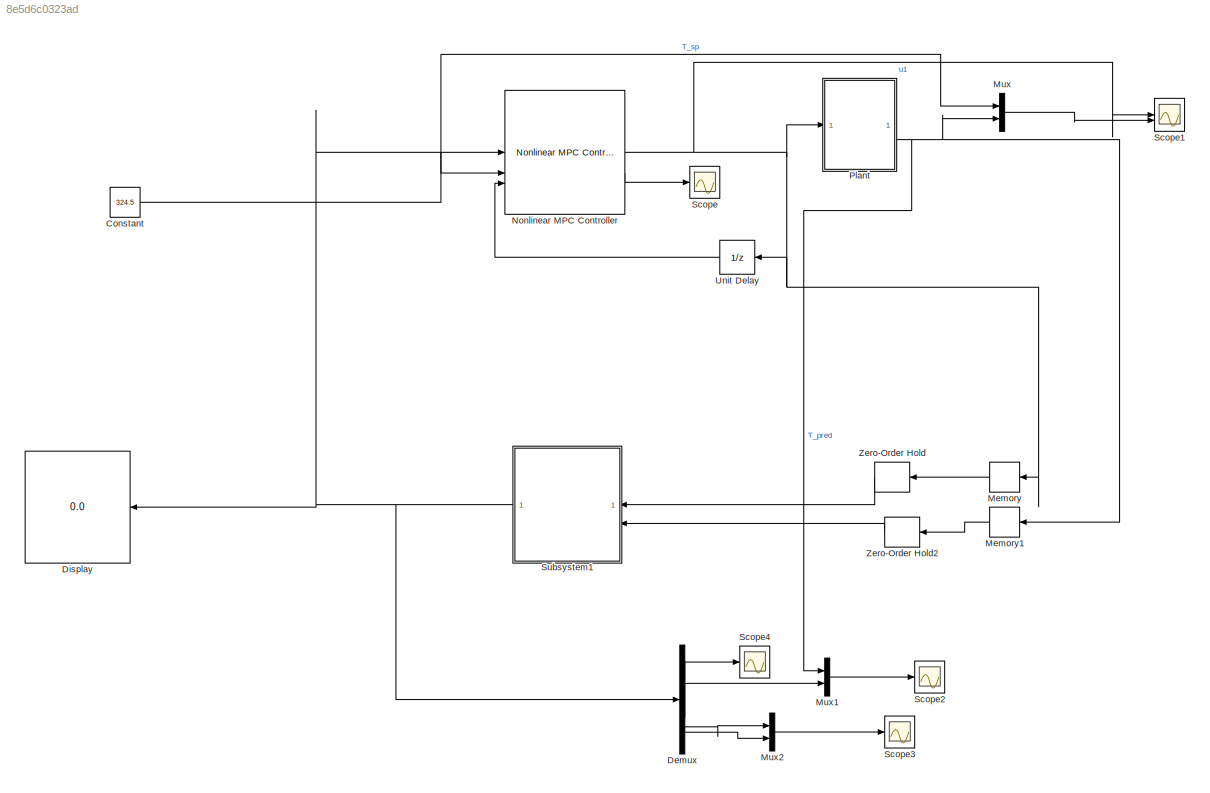
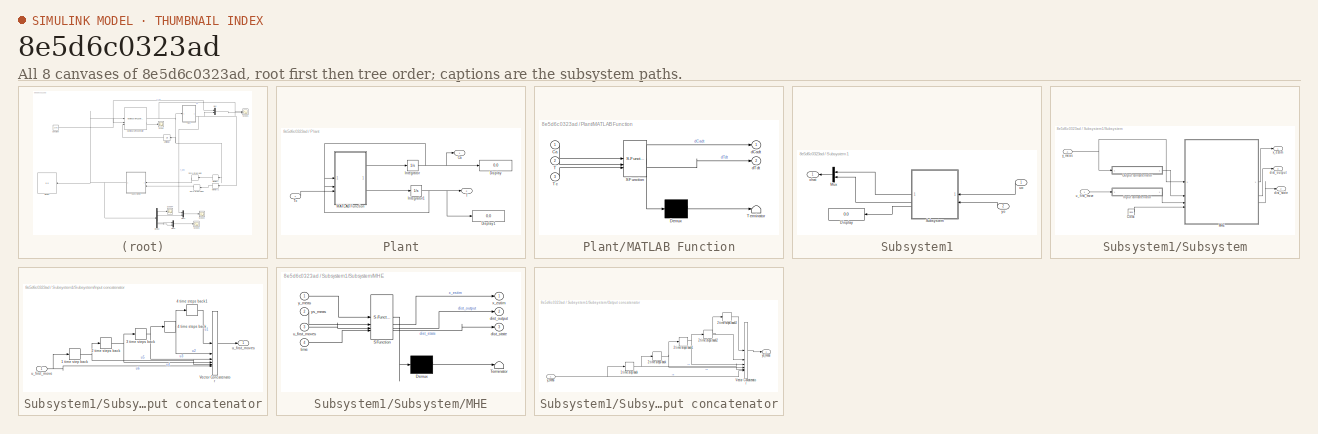
[diagram: thumbnail index - all 8 canvases of the model, root first then tree order]
MODEL slx_8e5d6c0323ad
KIND model
CONFIG AbsTol = auto
CONFIG EnableMultiTasking = off
CONFIG FixedStep = auto
CONFIG MaxStep = auto
CONFIG MinStep = auto
CONFIG RelTol = 1e-3
CONFIG SampleTimeConstraint = Unconstrained
CONFIG SolverName = VariableStepAuto
CONFIG StartTime = 0.0
CONFIG StopTime = 30
BLOCK [Constant] Constant
  Value = 324.5
BLOCK [Demux] Demux
BLOCK [Display] Display
  Decimation = 1
BLOCK [Memory] Memory
  InitialCondition = 300
BLOCK [Memory] Memory1
  InitialCondition = 324.5
BLOCK [Mux] Mux
  DisplayOption = bar
  Inputs = 2
BLOCK [Mux] Mux1
  DisplayOption = bar
  Inputs = 2
BLOCK [Mux] Mux2
  DisplayOption = bar
  Inputs = 2
BLOCK [Reference] Nonlinear MPC Controller  REF=mpclib/Nonlinear MPC Controller  (lib defined in mdl_ae329e0e0455)
  SourceBlock = mpclib/Nonlinear MPC Controller
  SourceType = NonlinearMPC
BLOCK [SubSystem] Plant
BLOCK [Outport] Plant/Ca
BLOCK [Display] Plant/Display
  Decimation = 1
BLOCK [Display] Plant/Display1
  Decimation = 1
BLOCK [Integrator] Plant/Integrator
BLOCK [Integrator] Plant/Integrator1
  InitialCondition = 300
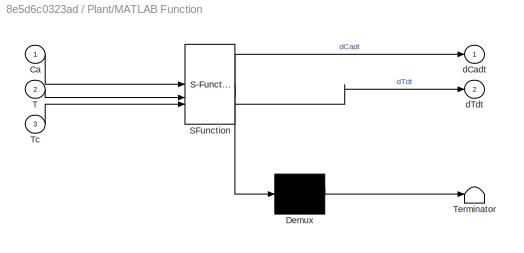
BLOCK [SubSystem] Plant/MATLAB Function
  ErrorFcn = Stateflow.Translate.translate
  PermitHierarchicalResolution = ExplicitOnly
  SFBlockType = MATLAB Function
  TreatAsAtomicUnit = on
BLOCK [Demux] Plant/MATLAB Function/ Demux 
  Outputs = 1
BLOCK [S-Function] Plant/MATLAB Function/ SFunction 
  EnableBusSupport = on
  FunctionName = sf_sfun
  PortCounts = [3 3]
  SFcnIsStateOwnerBlock = off
  SFunctionDeploymentMode = off
  Tag = Stateflow S-Function 2
BLOCK [Terminator] Plant/MATLAB Function/ Terminator 
BLOCK [Inport] Plant/MATLAB Function/Ca
BLOCK [Inport] Plant/MATLAB Function/T
  Port = 2
BLOCK [Inport] Plant/MATLAB Function/Tc
  Port = 3
BLOCK [Outport] Plant/MATLAB Function/dCadt
BLOCK [Outport] Plant/MATLAB Function/dTdt
  Port = 2
BLOCK [Outport] Plant/T
  Port = 2
BLOCK [Inport] Plant/Tc
BLOCK [Scope] Scope
  Floating = off
  NumInputPorts = 1
  ScopeSpecificationString = Simulink.scopes.TimeScopeBlockCfg('CurrentConfiguration', extmgr.ConfigurationSet(extmgr.Configuration('Core','General UI',true),extmgr.Configuration('Core','Source UI',true),extmgr.Configuration('Sources','WiredSimulink',true,'DataLoggingVariableName','ScopeData1'),extmgr.Configuration('Visuals','Time Domain',true,'SerializedDisplays',{struct('MinYLimReal','-2.5','MaxYLimReal','2.5','YLabelReal',...<+1396ch>
BLOCK [Scope] Scope1
  Floating = off
  NumInputPorts = 2
  ScopeSpecificationString = Simulink.scopes.TimeScopeBlockCfg('CurrentConfiguration', extmgr.ConfigurationSet(extmgr.Configuration('Core','General UI',true,'FigureColor',[1 1 1]),extmgr.Configuration('Core','Source UI',true),extmgr.Configuration('Sources','WiredSimulink',true),extmgr.Configuration('Visuals','Time Domain',true,'SerializedDisplays',{struct('MinYLimReal','297.99489','MaxYLimReal','300.22279','YLabelReal','','Mi...<+2320ch>
BLOCK [Scope] Scope2
  Floating = off
  NumInputPorts = 1
  ScopeSpecificationString = Simulink.scopes.TimeScopeBlockCfg('CurrentConfiguration', extmgr.ConfigurationSet(extmgr.Configuration('Core','General UI',true),extmgr.Configuration('Core','Source UI',true),extmgr.Configuration('Sources','WiredSimulink',true,'DataLoggingVariableName','ScopeData1'),extmgr.Configuration('Visuals','Time Domain',true,'SerializedDisplays',{struct('MinYLimReal','296.9375','MaxYLimReal','327.5625','YLa...<+1407ch>
BLOCK [Scope] Scope3
  Floating = off
  NumInputPorts = 1
  ScopeSpecificationString = Simulink.scopes.TimeScopeBlockCfg('CurrentConfiguration', extmgr.ConfigurationSet(extmgr.Configuration('Core','General UI',true),extmgr.Configuration('Core','Source UI',true),extmgr.Configuration('Sources','WiredSimulink',true,'DataLoggingVariableName','ScopeData2'),extmgr.Configuration('Visuals','Time Domain',true,'SerializedDisplays',{struct('MinYLimReal','-0.00125','MaxYLimReal','0.01125','YLab...<+1402ch>
BLOCK [Scope] Scope4
  Floating = off
  NumInputPorts = 1
  ScopeSpecificationString = Simulink.scopes.TimeScopeBlockCfg('CurrentConfiguration', extmgr.ConfigurationSet(extmgr.Configuration('Core','General UI',true),extmgr.Configuration('Core','Source UI',true),extmgr.Configuration('Sources','WiredSimulink',true,'DataLoggingVariableName','ScopeData3'),extmgr.Configuration('Visuals','Time Domain',true,'SerializedDisplays',{struct('MinYLimReal','0.85425','MaxYLimReal','1.08176','YLabe...<+1390ch>
BLOCK [SubSystem] Subsystem1
BLOCK [Display] Subsystem1/Display
  Decimation = 1
BLOCK [Mux] Subsystem1/Mux
  DisplayOption = bar
  Inputs = 2
BLOCK [SubSystem] Subsystem1/Subsystem
BLOCK [Clock] Subsystem1/Subsystem/Clock
  Decimation = 20
BLOCK [SubSystem] Subsystem1/Subsystem/Input concatenator
BLOCK [TransportDelay] Subsystem1/Subsystem/Input concatenator/1 time step back
  DelayTime = Ts
  InitialOutput = 300
BLOCK [TransportDelay] Subsystem1/Subsystem/Input concatenator/2 time steps back
  DelayTime = Ts
  InitialOutput = 300
BLOCK [TransportDelay] Subsystem1/Subsystem/Input concatenator/3 time steps back
  DelayTime = Ts
  InitialOutput = 300
BLOCK [TransportDelay] Subsystem1/Subsystem/Input concatenator/4 time steps back
  DelayTime = Ts
  InitialOutput = 300
BLOCK [TransportDelay] Subsystem1/Subsystem/Input concatenator/4 time steps back1
  DelayTime = Ts
  InitialOutput = 300
BLOCK [Concatenate] Subsystem1/Subsystem/Input concatenator/Vector Concatenator
  Mode = Multidimensional array
  NumInputs = 6
BLOCK [Inport] Subsystem1/Subsystem/Input concatenator/u_first_move
BLOCK [Outport] Subsystem1/Subsystem/Input concatenator/u_first_moves
  PortDimensions = [6,1]
  VectorParamsAs1DForOutWhenUnconnected = off
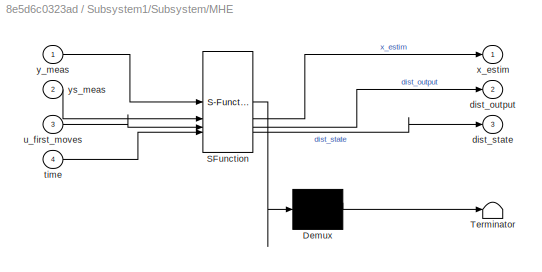
BLOCK [SubSystem] Subsystem1/Subsystem/MHE
  ErrorFcn = Stateflow.Translate.translate
  PermitHierarchicalResolution = ExplicitOnly
  SFBlockType = MATLAB Function
  TreatAsAtomicUnit = on
BLOCK [Demux] Subsystem1/Subsystem/MHE/ Demux 
  Outputs = 1
BLOCK [S-Function] Subsystem1/Subsystem/MHE/ SFunction 
  EnableBusSupport = on
  FunctionName = sf_sfun
  PortCounts = [4 4]
  SFcnIsStateOwnerBlock = off
  SFunctionDeploymentMode = off
  Tag = Stateflow S-Function 1
BLOCK [Terminator] Subsystem1/Subsystem/MHE/ Terminator 
BLOCK [Outport] Subsystem1/Subsystem/MHE/dist_output
  Port = 2
BLOCK [Outport] Subsystem1/Subsystem/MHE/dist_state
  Port = 3
BLOCK [Inport] Subsystem1/Subsystem/MHE/time
  Port = 4
BLOCK [Inport] Subsystem1/Subsystem/MHE/u_first_moves
  Port = 3
BLOCK [Outport] Subsystem1/Subsystem/MHE/x_estim
BLOCK [Inport] Subsystem1/Subsystem/MHE/y_meas
BLOCK [Inport] Subsystem1/Subsystem/MHE/ys_meas
  Port = 2
BLOCK [SubSystem] Subsystem1/Subsystem/Output concatenator
BLOCK [TransportDelay] Subsystem1/Subsystem/Output concatenator/1 time step back
  DelayTime = Ts
  InitialOutput = 324.5
BLOCK [TransportDelay] Subsystem1/Subsystem/Output concatenator/2 time steps back
  DelayTime = Ts
  InitialOutput = 324.5
BLOCK [TransportDelay] Subsystem1/Subsystem/Output concatenator/2 time steps back1
  DelayTime = Ts
  InitialOutput = 324.5
BLOCK [TransportDelay] Subsystem1/Subsystem/Output concatenator/2 time steps back2
  DelayTime = Ts
  InitialOutput = 324.5
BLOCK [TransportDelay] Subsystem1/Subsystem/Output concatenator/2 time steps back3
  DelayTime = Ts
  InitialOutput = 324.5
BLOCK [Concatenate] Subsystem1/Subsystem/Output concatenator/Vector Concatenator
  Mode = Multidimensional array
  NumInputs = 6
BLOCK [Inport] Subsystem1/Subsystem/Output concatenator/y_meas
BLOCK [Outport] Subsystem1/Subsystem/Output concatenator/ys_meas
  PortDimensions = [6,1]
  VectorParamsAs1DForOutWhenUnconnected = off
BLOCK [Outport] Subsystem1/Subsystem/dist_output
  Port = 3
BLOCK [Outport] Subsystem1/Subsystem/dist_state
  Port = 2
BLOCK [Inport] Subsystem1/Subsystem/u_first_move
  PortDimensions = [1,1]
BLOCK [Outport] Subsystem1/Subsystem/x_estim
BLOCK [Inport] Subsystem1/Subsystem/y_meas
  Port = 2
  PortDimensions = [1,1]
BLOCK [Inport] Subsystem1/uo
BLOCK [Outport] Subsystem1/xhat
BLOCK [Inport] Subsystem1/yo
  Port = 2
BLOCK [UnitDelay] Unit Delay
  HasFrameUpgradeWarning = on
  InitialCondition = u0
  SampleTime = Ts
BLOCK [ZeroOrderHold] Zero-Order Hold
  SampleTime = Ts
BLOCK [ZeroOrderHold] Zero-Order Hold2
  SampleTime = Ts
NET Constant:1 -> Mux:1, Nonlinear MPC Controller:2
LINE Demux:1 -> Scope4:1
LINE Demux:2 -> Mux1:2
LINE Demux:3 -> Mux2:1
LINE Demux:4 -> Mux2:2
LINE Memory1:1 -> Zero-Order Hold2:1
LINE Memory:1 -> Zero-Order Hold:1
LINE Mux1:1 -> Scope2:1
LINE Mux2:1 -> Scope3:1
LINE Mux:1 -> Scope1:2
NET Nonlinear MPC Controller:1 -> Memory:1, Plant:1, Scope1:1, Unit Delay:1
LINE Nonlinear MPC Controller:2 -> Scope:1
NET Plant/Integrator1:1 -> Plant/Display1:1, Plant/MATLAB Function:2, Plant/T:1
NET Plant/Integrator:1 -> Plant/Ca:1, Plant/Display:1, Plant/MATLAB Function:1
LINE Plant/MATLAB Function:1 -> Plant/Integrator:1
LINE Plant/MATLAB Function:2 -> Plant/Integrator1:1
LINE Plant/Tc:1 -> Plant/MATLAB Function:3
NET Plant:2 -> Memory1:1, Mux1:1, Mux:2
LINE Subsystem1/Mux:1 -> Subsystem1/xhat:1
LINE Subsystem1/Subsystem/Clock:1 -> Subsystem1/Subsystem/MHE:4
NET Subsystem1/Subsystem/Input concatenator/1 time step back:1 -> Subsystem1/Subsystem/Input concatenator/2 time steps back:1, Subsystem1/Subsystem/Input concatenator/Vector Concatenator:5
NET Subsystem1/Subsystem/Input concatenator/2 time steps back:1 -> Subsystem1/Subsystem/Input concatenator/3 time steps back:1, Subsystem1/Subsystem/Input concatenator/Vector Concatenator:4
NET Subsystem1/Subsystem/Input concatenator/3 time steps back:1 -> Subsystem1/Subsystem/Input concatenator/4 time steps back:1, Subsystem1/Subsystem/Input concatenator/Vector Concatenator:3
LINE Subsystem1/Subsystem/Input concatenator/4 time steps back1:1 -> Subsystem1/Subsystem/Input concatenator/Vector Concatenator:1
NET Subsystem1/Subsystem/Input concatenator/4 time steps back:1 -> Subsystem1/Subsystem/Input concatenator/4 time steps back1:1, Subsystem1/Subsystem/Input concatenator/Vector Concatenator:2
LINE Subsystem1/Subsystem/Input concatenator/Vector Concatenator:1 -> Subsystem1/Subsystem/Input concatenator/u_first_moves:1
NET Subsystem1/Subsystem/Input concatenator/u_first_move:1 -> Subsystem1/Subsystem/Input concatenator/1 time step back:1, Subsystem1/Subsystem/Input concatenator/Vector Concatenator:6
LINE Subsystem1/Subsystem/Input concatenator:1 -> Subsystem1/Subsystem/MHE:3
LINE Subsystem1/Subsystem/MHE:1 -> Subsystem1/Subsystem/x_estim:1
LINE Subsystem1/Subsystem/MHE:2 -> Subsystem1/Subsystem/dist_output:1
LINE Subsystem1/Subsystem/MHE:3 -> Subsystem1/Subsystem/dist_state:1
NET Subsystem1/Subsystem/Output concatenator/1 time step back:1 -> Subsystem1/Subsystem/Output concatenator/2 time steps back:1, Subsystem1/Subsystem/Output concatenator/Vector Concatenator:5
NET Subsystem1/Subsystem/Output concatenator/2 time steps back1:1 -> Subsystem1/Subsystem/Output concatenator/2 time steps back2:1, Subsystem1/Subsystem/Output concatenator/Vector Concatenator:3
NET Subsystem1/Subsystem/Output concatenator/2 time steps back2:1 -> Subsystem1/Subsystem/Output concatenator/2 time steps back3:1, Subsystem1/Subsystem/Output concatenator/Vector Concatenator:2
LINE Subsystem1/Subsystem/Output concatenator/2 time steps back3:1 -> Subsystem1/Subsystem/Output concatenator/Vector Concatenator:1
NET Subsystem1/Subsystem/Output concatenator/2 time steps back:1 -> Subsystem1/Subsystem/Output concatenator/2 time steps back1:1, Subsystem1/Subsystem/Output concatenator/Vector Concatenator:4
LINE Subsystem1/Subsystem/Output concatenator/Vector Concatenator:1 -> Subsystem1/Subsystem/Output concatenator/ys_meas:1
NET Subsystem1/Subsystem/Output concatenator/y_meas:1 -> Subsystem1/Subsystem/Output concatenator/1 time step back:1, Subsystem1/Subsystem/Output concatenator/Vector Concatenator:6
LINE Subsystem1/Subsystem/Output concatenator:1 -> Subsystem1/Subsystem/MHE:2
LINE Subsystem1/Subsystem/u_first_move:1 -> Subsystem1/Subsystem/Input concatenator:1
NET Subsystem1/Subsystem/y_meas:1 -> Subsystem1/Subsystem/MHE:1, Subsystem1/Subsystem/Output concatenator:1
LINE Subsystem1/Subsystem:1 -> Subsystem1/Mux:1
LINE Subsystem1/Subsystem:2 -> Subsystem1/Mux:2
LINE Subsystem1/Subsystem:3 -> Subsystem1/Display:1
LINE Subsystem1/uo:1 -> Subsystem1/Subsystem:1
LINE Subsystem1/yo:1 -> Subsystem1/Subsystem:2
NET Subsystem1:1 -> Demux:1, Display:1, Nonlinear MPC Controller:1
LINE Unit Delay:1 -> Nonlinear MPC Controller:3
LINE Zero-Order Hold2:1 -> Subsystem1:2
LINE Zero-Order Hold:1 -> Subsystem1:1
note: NET lines group one-source signal fan-out (src -> all destinations, sorted); 1:1 wires keep LINE
CHART Subsystem1/Subsystem/MHE states=1 transitions=1
  STATE_LABEL 'eML_blk_kernel()'
  STATE_LABEL "SCRIPT:\nfunction [x_estim,dist_output,dist_state] = MHE_4_tanks(y_meas,ys_meas,u_first_moves,time)\n\ncoder.extrinsic('MHE_compute');\n\nN_MHE=6;\n% Ts=2 ;\n\n\nif time < 0.3\n    \n    x_estim =  [0.877;324.5]  ;\n   % x_estim = [17;17;17];\n    %x_estim = [5.898;1.8];\n    dist_state = [0;0];\n    dist_output = 0;\nelse\n    \n    [x_estim,dist_state,dist_output] = MHE_compute(ys_meas,u_first_moves,N_MHE,y_meas)...<+81ch>"
CHART Plant/MATLAB Function states=1 transitions=1
  STATE_LABEL 'eML_blk_kernel()'
  STATE_LABEL 'SCRIPT:\nfunction [dCadt,dTdt] = fcn(Ca,T,Tc)\n\nvalues = {100,5e4,350,100,1000,0.239,8750,7.2e10,5e4,1};\n[F,delta_H,Tf,V,rho,Cp,E_R,k0,U_A,Caf] = values{:};\n\n% Rate constant (Arrhenius equation)\n        k = k0 * exp(-E_R / T);\n        \n        % Mass balance for Ca\n        dCadt = F/V * (Caf - Ca) - k * Ca;\n        \n        % Energy balance for T\n        dTdt = F/V * (Tf - T) + (delta_H / (rho * Cp)...<+54ch>'
CHART  states=0 transitions=0
CHART  states=0 transitions=0
